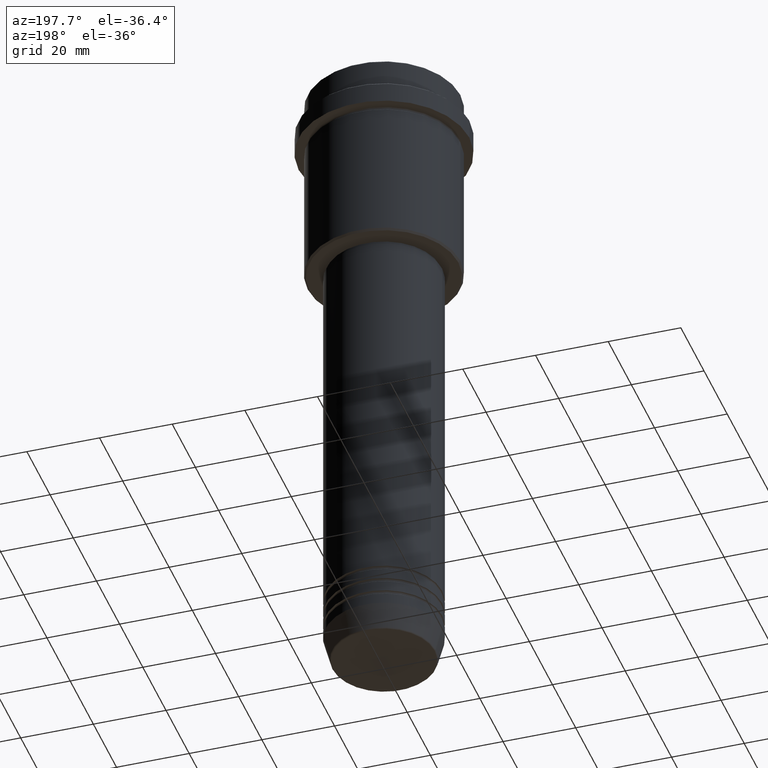
[diagram: clean part render]
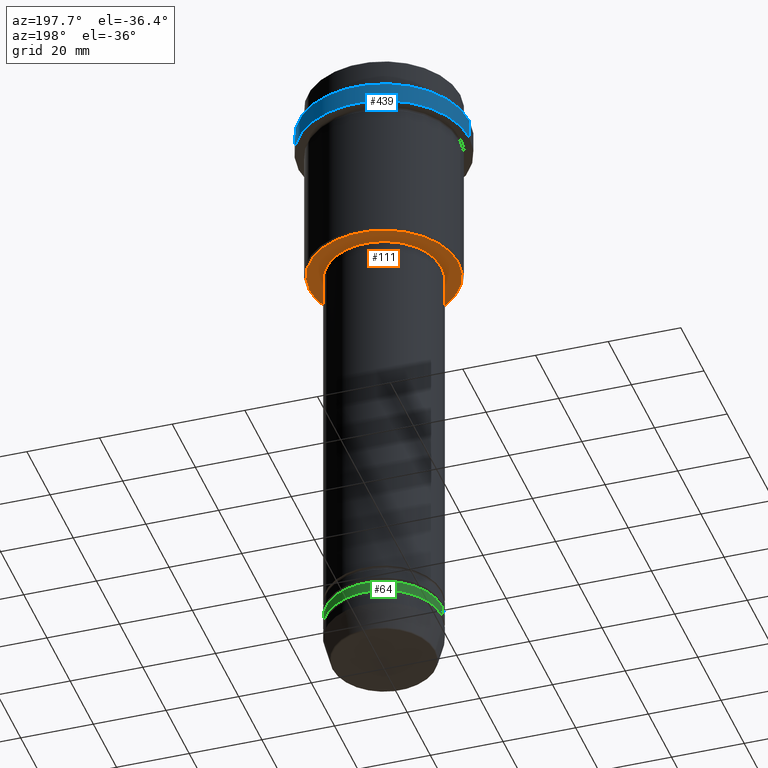
[diagram: same view with three faces highlighted in distinct colors, each labeled with its STEP entity id]
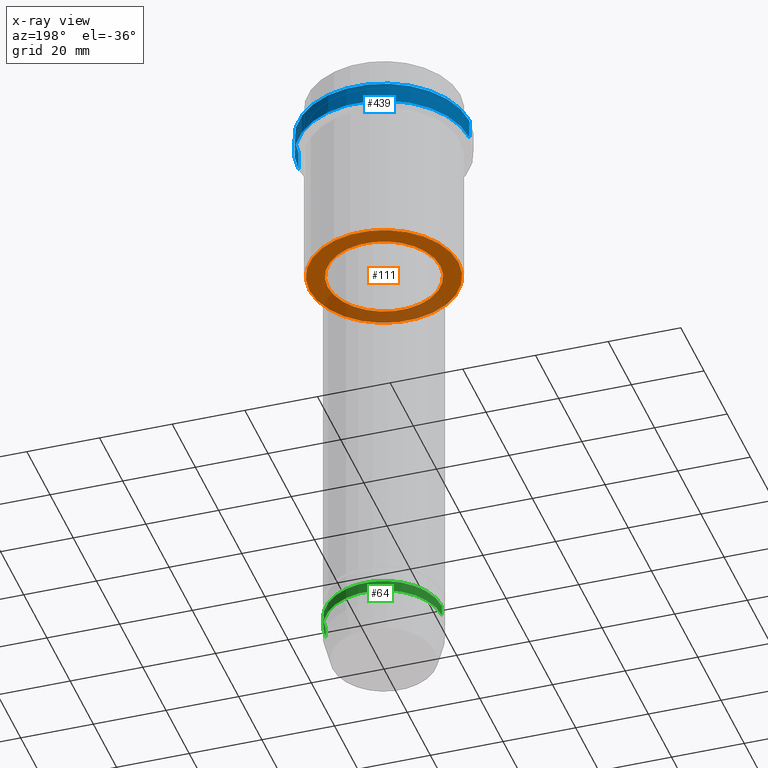
[diagram: x-ray of the same camera — body ghosted, the three highlighted faces saturated]
A machine part, auxiliary view with three faces highlighted in distinct colors.
The next image is the same camera in x-ray (body ghosted, the three faces saturated) — at least one of them is partly hidden behind the body in this view.
Their STEP definitions:

[orange] entity #111 — the highlighted planar face has unit normal (0, 0, -1).
#9 = EDGE_CURVE ( 'NONE', #1033, #45, #972, .T. ) ;
#18 = DIRECTION ( 'NONE',  ( -1.000000000000000000, 0.000000000000000000, 0.000000000000000000 ) ) ;
#31 = ORIENTED_EDGE ( 'NONE', *, *, #1216, .T. ) ;
#45 = VERTEX_POINT ( 'NONE', #759 ) ;
#62 = CARTESIAN_POINT ( 'NONE',  ( -20.50000000000000355, 2.541142108230758269E-15, -54.99999999999999289 ) ) ;
#72 = ORIENTED_EDGE ( 'NONE', *, *, #780, .T. ) ;
#111 = ADVANCED_FACE ( 'NONE', ( #125, #475 ), #575, .T. ) ;
#125 = FACE_OUTER_BOUND ( 'NONE', #1194, .T. ) ;
#144 = CARTESIAN_POINT ( 'NONE',  ( -15.49999999999999645, 1.898202538678397163E-15, -54.99999999999999289 ) ) ;
#252 = VERTEX_POINT ( 'NONE', #62 ) ;
#315 = CIRCLE ( 'NONE', #1009, 20.50000000000000355 ) ;
#316 = ORIENTED_EDGE ( 'NONE', *, *, #1115, .T. ) ;
#426 = CARTESIAN_POINT ( 'NONE',  ( 0.000000000000000000, 0.000000000000000000, -54.99999999999999289 ) ) ;
#427 = CIRCLE ( 'NONE', #934, 15.49999999999999645 ) ;
#432 = ORIENTED_EDGE ( 'NONE', *, *, #9, .T. ) ;
#435 = DIRECTION ( 'NONE',  ( 1.000000000000000000, 0.000000000000000000, 0.000000000000000000 ) ) ;
#475 = FACE_BOUND ( 'NONE', #1106, .T. ) ;
#575 = PLANE ( 'NONE',  #672 ) ;
#591 = CIRCLE ( 'NONE', #698, 20.50000000000000355 ) ;
#616 = CARTESIAN_POINT ( 'NONE',  ( 0.000000000000000000, 0.000000000000000000, -54.99999999999999289 ) ) ;
#672 = AXIS2_PLACEMENT_3D ( 'NONE', #896, #1330, #912 ) ;
#690 = CARTESIAN_POINT ( 'NONE',  ( 0.000000000000000000, 0.000000000000000000, -54.99999999999999289 ) ) ;
#698 = AXIS2_PLACEMENT_3D ( 'NONE', #725, #909, #18 ) ;
#725 = CARTESIAN_POINT ( 'NONE',  ( 0.000000000000000000, 0.000000000000000000, -54.99999999999999289 ) ) ;
#752 = CARTESIAN_POINT ( 'NONE',  ( 20.50000000000000355, 0.000000000000000000, -54.99999999999999289 ) ) ;
#759 = CARTESIAN_POINT ( 'NONE',  ( 15.49999999999999645, 0.000000000000000000, -54.99999999999999289 ) ) ;
#767 = DIRECTION ( 'NONE',  ( -0.000000000000000000, -0.000000000000000000, 1.000000000000000000 ) ) ;
#780 = EDGE_CURVE ( 'NONE', #977, #252, #315, .T. ) ;
#793 = DIRECTION ( 'NONE',  ( -0.000000000000000000, -0.000000000000000000, 1.000000000000000000 ) ) ;
#896 = CARTESIAN_POINT ( 'NONE',  ( 0.000000000000000000, 21.00000000000000000, -54.99999999999999289 ) ) ;
#909 = DIRECTION ( 'NONE',  ( 0.000000000000000000, 0.000000000000000000, -1.000000000000000000 ) ) ;
#912 = DIRECTION ( 'NONE',  ( -1.000000000000000000, 0.000000000000000000, -0.000000000000000000 ) ) ;
#934 = AXIS2_PLACEMENT_3D ( 'NONE', #690, #793, #435 ) ;
#945 = DIRECTION ( 'NONE',  ( 0.000000000000000000, 0.000000000000000000, -1.000000000000000000 ) ) ;
#972 = CIRCLE ( 'NONE', #1036, 15.49999999999999645 ) ;
#977 = VERTEX_POINT ( 'NONE', #752 ) ;
#1009 = AXIS2_PLACEMENT_3D ( 'NONE', #616, #945, #1028 ) ;
#1028 = DIRECTION ( 'NONE',  ( -1.000000000000000000, 0.000000000000000000, 0.000000000000000000 ) ) ;
#1033 = VERTEX_POINT ( 'NONE', #144 ) ;
#1036 = AXIS2_PLACEMENT_3D ( 'NONE', #426, #767, #1183 ) ;
#1106 = EDGE_LOOP ( 'NONE', ( #316, #432 ) ) ;
#1115 = EDGE_CURVE ( 'NONE', #45, #1033, #427, .T. ) ;
#1183 = DIRECTION ( 'NONE',  ( 1.000000000000000000, 0.000000000000000000, 0.000000000000000000 ) ) ;
#1194 = EDGE_LOOP ( 'NONE', ( #72, #31 ) ) ;
#1216 = EDGE_CURVE ( 'NONE', #252, #977, #591, .T. ) ;
#1330 = DIRECTION ( 'NONE',  ( 0.000000000000000000, 0.000000000000000000, -1.000000000000000000 ) ) ;

[blue] entity #439 — the highlighted cylindrical surface (partial cylindrical patch) has radius 23.5 mm, axis along (-0, -0, 1).
#52 = ORIENTED_EDGE ( 'NONE', *, *, #1136, .T. ) ;
#66 = VERTEX_POINT ( 'NONE', #905 ) ;
#77 = VERTEX_POINT ( 'NONE', #1100 ) ;
#212 = CARTESIAN_POINT ( 'NONE',  ( 0.000000000000000000, 0.000000000000000000, -15.00000000000000000 ) ) ;
#231 = DIRECTION ( 'NONE',  ( 1.000000000000000000, 0.000000000000000000, 0.000000000000000000 ) ) ;
#348 = ORIENTED_EDGE ( 'NONE', *, *, #891, .F. ) ;
#350 = CARTESIAN_POINT ( 'NONE',  ( -23.50000000000000000, 2.877919977996280320E-15, -9.499999999999971578 ) ) ;
#423 = LINE ( 'NONE', #1043, #1078 ) ;
#439 = ADVANCED_FACE ( 'NONE', ( #1413 ), #895, .T. ) ;
#445 = EDGE_CURVE ( 'NONE', #1284, #502, #1308, .T. ) ;
#465 = CARTESIAN_POINT ( 'NONE',  ( 0.000000000000000000, 0.000000000000000000, 0.000000000000000000 ) ) ;
#502 = VERTEX_POINT ( 'NONE', #350 ) ;
#602 = CARTESIAN_POINT ( 'NONE',  ( -23.50000000000000711, 2.877919977996281109E-15, -15.00000000000000000 ) ) ;
#607 = VECTOR ( 'NONE', #903, 1000.000000000000000 ) ;
#717 = CIRCLE ( 'NONE', #952, 23.50000000000000000 ) ;
#735 = ORIENTED_EDGE ( 'NONE', *, *, #964, .T. ) ;
#758 = DIRECTION ( 'NONE',  ( -0.000000000000000000, -0.000000000000000000, 1.000000000000000000 ) ) ;
#783 = AXIS2_PLACEMENT_3D ( 'NONE', #465, #876, #231 ) ;
#841 = AXIS2_PLACEMENT_3D ( 'NONE', #212, #758, #1414 ) ;
#867 = DIRECTION ( 'NONE',  ( -0.000000000000000000, -0.000000000000000000, 1.000000000000000000 ) ) ;
#874 = DIRECTION ( 'NONE',  ( 1.000000000000000000, 0.000000000000000000, 0.000000000000000000 ) ) ;
#876 = DIRECTION ( 'NONE',  ( -0.000000000000000000, -0.000000000000000000, 1.000000000000000000 ) ) ;
#884 = CIRCLE ( 'NONE', #841, 23.50000000000000355 ) ;
#891 = EDGE_CURVE ( 'NONE', #77, #66, #423, .T. ) ;
#894 = DIRECTION ( 'NONE',  ( 0.000000000000000000, 0.000000000000000000, -1.000000000000000000 ) ) ;
#895 = CYLINDRICAL_SURFACE ( 'NONE', #783, 23.50000000000000000 ) ;
#903 = DIRECTION ( 'NONE',  ( -0.000000000000000000, -0.000000000000000000, 1.000000000000000000 ) ) ;
#905 = CARTESIAN_POINT ( 'NONE',  ( 23.50000000000000000, 0.000000000000000000, -9.499999999999971578 ) ) ;
#952 = AXIS2_PLACEMENT_3D ( 'NONE', #1108, #894, #874 ) ;
#964 = EDGE_CURVE ( 'NONE', #502, #66, #717, .T. ) ;
#1016 = ORIENTED_EDGE ( 'NONE', *, *, #445, .T. ) ;
#1023 = EDGE_LOOP ( 'NONE', ( #52, #1016, #735, #348 ) ) ;
#1043 = CARTESIAN_POINT ( 'NONE',  ( 23.50000000000000000, 0.000000000000000000, 0.000000000000000000 ) ) ;
#1078 = VECTOR ( 'NONE', #867, 1000.000000000000000 ) ;
#1100 = CARTESIAN_POINT ( 'NONE',  ( 23.50000000000000355, 0.000000000000000000, -15.00000000000000000 ) ) ;
#1108 = CARTESIAN_POINT ( 'NONE',  ( 0.000000000000000000, 0.000000000000000000, -9.499999999999971578 ) ) ;
#1136 = EDGE_CURVE ( 'NONE', #77, #1284, #884, .T. ) ;
#1284 = VERTEX_POINT ( 'NONE', #602 ) ;
#1298 = CARTESIAN_POINT ( 'NONE',  ( -23.50000000000000000, 2.877919977996280320E-15, 0.000000000000000000 ) ) ;
#1308 = LINE ( 'NONE', #1298, #607 ) ;
#1413 = FACE_OUTER_BOUND ( 'NONE', #1023, .T. ) ;
#1414 = DIRECTION ( 'NONE',  ( 1.000000000000000000, 0.000000000000000000, 0.000000000000000000 ) ) ;

[green] entity #64 — the highlighted cylindrical surface (partial cylindrical patch) has radius 16 mm, axis along (-0, -0, 1).
#12 = CARTESIAN_POINT ( 'NONE',  ( 0.000000000000000000, 0.000000000000000000, -165.9999999999998579 ) ) ;
#28 = CARTESIAN_POINT ( 'NONE',  ( 0.000000000000000000, 0.000000000000000000, -168.9999999999998863 ) ) ;
#64 = ADVANCED_FACE ( 'NONE', ( #329 ), #868, .T. ) ;
#85 = EDGE_CURVE ( 'NONE', #246, #1159, #1059, .T. ) ;
#124 = DIRECTION ( 'NONE',  ( -0.000000000000000000, -0.000000000000000000, 1.000000000000000000 ) ) ;
#223 = ORIENTED_EDGE ( 'NONE', *, *, #1259, .F. ) ;
#232 = DIRECTION ( 'NONE',  ( 1.000000000000000000, 0.000000000000000000, 0.000000000000000000 ) ) ;
#237 = VECTOR ( 'NONE', #124, 1000.000000000000000 ) ;
#246 = VERTEX_POINT ( 'NONE', #845 ) ;
#329 = FACE_OUTER_BOUND ( 'NONE', #358, .T. ) ;
#334 = CARTESIAN_POINT ( 'NONE',  ( 16.00000000000000000, 0.000000000000000000, -165.9999999999998579 ) ) ;
#358 = EDGE_LOOP ( 'NONE', ( #1214, #1135, #223, #1357 ) ) ;
#371 = DIRECTION ( 'NONE',  ( -0.000000000000000000, -0.000000000000000000, 1.000000000000000000 ) ) ;
#376 = DIRECTION ( 'NONE',  ( 1.000000000000000000, 0.000000000000000000, 0.000000000000000000 ) ) ;
#401 = EDGE_CURVE ( 'NONE', #1159, #1056, #999, .T. ) ;
#451 = VERTEX_POINT ( 'NONE', #334 ) ;
#456 = CARTESIAN_POINT ( 'NONE',  ( -16.00000000000000000, 1.959434878635765131E-15, 0.000000000000000000 ) ) ;
#566 = DIRECTION ( 'NONE',  ( -0.000000000000000000, -0.000000000000000000, 1.000000000000000000 ) ) ;
#790 = CIRCLE ( 'NONE', #1231, 16.00000000000000000 ) ;
#832 = CARTESIAN_POINT ( 'NONE',  ( -16.00000000000000000, 1.959434878635765131E-15, -168.9999999999998863 ) ) ;
#842 = AXIS2_PLACEMENT_3D ( 'NONE', #1289, #371, #376 ) ;
#845 = CARTESIAN_POINT ( 'NONE',  ( 16.00000000000000000, 0.000000000000000000, -168.9999999999998863 ) ) ;
#868 = CYLINDRICAL_SURFACE ( 'NONE', #842, 16.00000000000000000 ) ;
#947 = CARTESIAN_POINT ( 'NONE',  ( -16.00000000000000000, 1.959434878635765131E-15, -165.9999999999998579 ) ) ;
#990 = CARTESIAN_POINT ( 'NONE',  ( 16.00000000000000000, 0.000000000000000000, 0.000000000000000000 ) ) ;
#999 = LINE ( 'NONE', #456, #237 ) ;
#1056 = VERTEX_POINT ( 'NONE', #947 ) ;
#1059 = CIRCLE ( 'NONE', #1353, 16.00000000000000000 ) ;
#1081 = EDGE_CURVE ( 'NONE', #246, #451, #1369, .T. ) ;
#1135 = ORIENTED_EDGE ( 'NONE', *, *, #401, .T. ) ;
#1159 = VERTEX_POINT ( 'NONE', #832 ) ;
#1188 = VECTOR ( 'NONE', #566, 1000.000000000000000 ) ;
#1214 = ORIENTED_EDGE ( 'NONE', *, *, #85, .T. ) ;
#1231 = AXIS2_PLACEMENT_3D ( 'NONE', #12, #1321, #1354 ) ;
#1259 = EDGE_CURVE ( 'NONE', #451, #1056, #790, .T. ) ;
#1289 = CARTESIAN_POINT ( 'NONE',  ( 0.000000000000000000, 0.000000000000000000, 0.000000000000000000 ) ) ;
#1321 = DIRECTION ( 'NONE',  ( -0.000000000000000000, -0.000000000000000000, 1.000000000000000000 ) ) ;
#1337 = DIRECTION ( 'NONE',  ( -0.000000000000000000, -0.000000000000000000, 1.000000000000000000 ) ) ;
#1353 = AXIS2_PLACEMENT_3D ( 'NONE', #28, #1337, #232 ) ;
#1354 = DIRECTION ( 'NONE',  ( 1.000000000000000000, 0.000000000000000000, 0.000000000000000000 ) ) ;
#1357 = ORIENTED_EDGE ( 'NONE', *, *, #1081, .F. ) ;
#1369 = LINE ( 'NONE', #990, #1188 ) ;